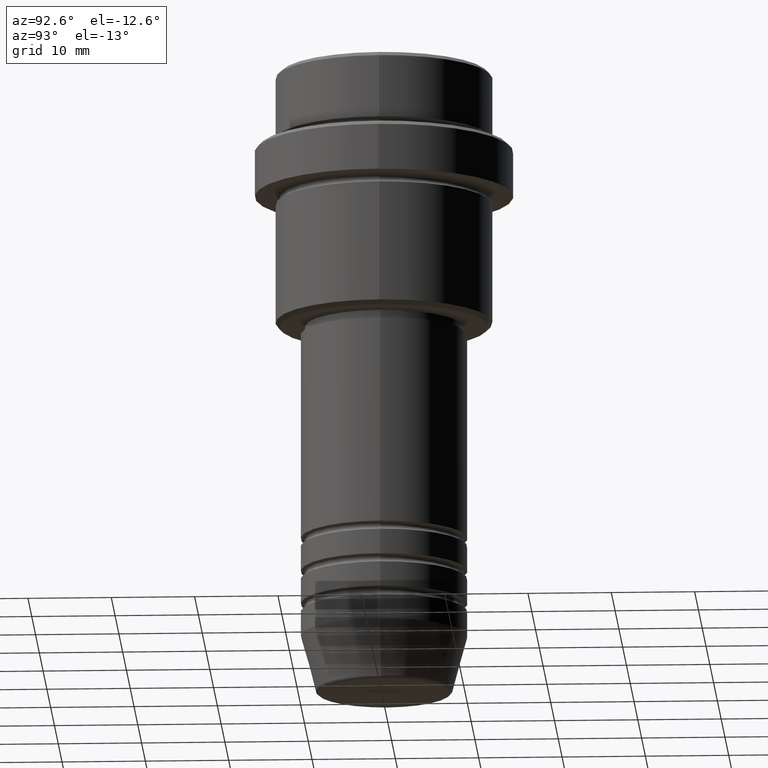
[diagram: clean part render]
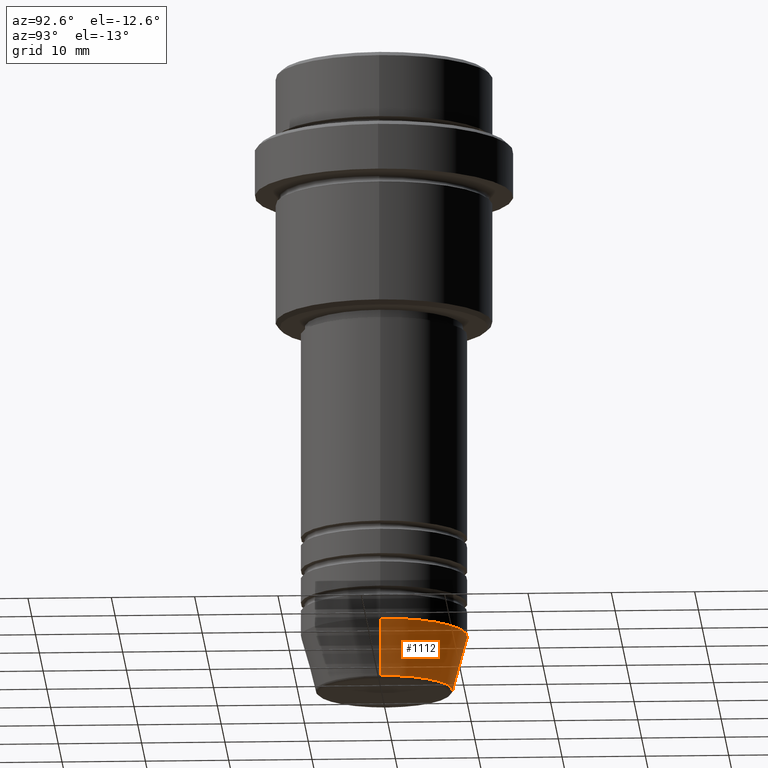
[diagram: same view with one face highlighted and labeled with its STEP entity id]
A machine part, auxiliary view. The second image highlights one B-rep face of the part: STEP entity #1112.
In plain terms, the highlighted conical surface has half-angle 15 deg.
Its self-contained STEP definition (entity closure, byte-faithful):
#33 = CIRCLE ( 'NONE', #187, 8.223655072137189492 ) ;
#50 = DIRECTION ( 'NONE',  ( -0.000000000000000000, -0.000000000000000000, 1.000000000000000000 ) ) ;
#68 = CARTESIAN_POINT ( 'NONE',  ( 0.000000000000000000, 0.000000000000000000, -75.62940952255125637 ) ) ;
#90 = EDGE_CURVE ( 'NONE', #1120, #274, #160, .T. ) ;
#115 = EDGE_CURVE ( 'NONE', #274, #1225, #416, .T. ) ;
#128 = EDGE_CURVE ( 'NONE', #1120, #1163, #33, .T. ) ;
#157 = EDGE_LOOP ( 'NONE', ( #262, #456, #1006, #350 ) ) ;
#160 = LINE ( 'NONE', #815, #1035 ) ;
#187 = AXIS2_PLACEMENT_3D ( 'NONE', #68, #50, #479 ) ;
#227 = CARTESIAN_POINT ( 'NONE',  ( -10.00000000000000000, 1.224646799147353256E-15, -68.99999999999998579 ) ) ;
#230 = DIRECTION ( 'NONE',  ( -0.2588190451025214611, 3.169619151431774186E-17, 0.9659258262890679791 ) ) ;
#262 = ORIENTED_EDGE ( 'NONE', *, *, #128, .T. ) ;
#274 = VERTEX_POINT ( 'NONE', #1059 ) ;
#278 = DIRECTION ( 'NONE',  ( -0.000000000000000000, -0.000000000000000000, 1.000000000000000000 ) ) ;
#332 = CONICAL_SURFACE ( 'NONE', #1177, 10.00000000000000000, 0.2617993877991502405 ) ;
#350 = ORIENTED_EDGE ( 'NONE', *, *, #90, .F. ) ;
#379 = VECTOR ( 'NONE', #230, 1000.000000000000114 ) ;
#397 = CARTESIAN_POINT ( 'NONE',  ( 0.000000000000000000, 0.000000000000000000, -68.99999999999998579 ) ) ;
#416 = CIRCLE ( 'NONE', #1214, 10.00000000000000000 ) ;
#456 = ORIENTED_EDGE ( 'NONE', *, *, #821, .T. ) ;
#479 = DIRECTION ( 'NONE',  ( 1.000000000000000000, 0.000000000000000000, 0.000000000000000000 ) ) ;
#589 = DIRECTION ( 'NONE',  ( 0.2588190451025214611, 0.000000000000000000, 0.9659258262890679791 ) ) ;
#815 = CARTESIAN_POINT ( 'NONE',  ( 10.00000000000000000, 0.000000000000000000, -68.99999999999998579 ) ) ;
#821 = EDGE_CURVE ( 'NONE', #1163, #1225, #1211, .T. ) ;
#837 = CARTESIAN_POINT ( 'NONE',  ( -8.223655072137189492, 1.115877042642912054E-15, -75.62940952255125637 ) ) ;
#848 = CARTESIAN_POINT ( 'NONE',  ( 8.223655072137189492, 0.000000000000000000, -75.62940952255125637 ) ) ;
#861 = FACE_OUTER_BOUND ( 'NONE', #157, .T. ) ;
#896 = CARTESIAN_POINT ( 'NONE',  ( -10.00000000000000000, 1.224646799147353256E-15, -68.99999999999998579 ) ) ;
#937 = DIRECTION ( 'NONE',  ( 1.000000000000000000, 0.000000000000000000, 0.000000000000000000 ) ) ;
#1006 = ORIENTED_EDGE ( 'NONE', *, *, #115, .F. ) ;
#1025 = CARTESIAN_POINT ( 'NONE',  ( 0.000000000000000000, 0.000000000000000000, -68.99999999999998579 ) ) ;
#1035 = VECTOR ( 'NONE', #589, 1000.000000000000114 ) ;
#1059 = CARTESIAN_POINT ( 'NONE',  ( 10.00000000000000000, 0.000000000000000000, -68.99999999999998579 ) ) ;
#1112 = ADVANCED_FACE ( 'NONE', ( #861 ), #332, .T. ) ;
#1120 = VERTEX_POINT ( 'NONE', #848 ) ;
#1163 = VERTEX_POINT ( 'NONE', #837 ) ;
#1177 = AXIS2_PLACEMENT_3D ( 'NONE', #397, #1396, #937 ) ;
#1211 = LINE ( 'NONE', #896, #379 ) ;
#1214 = AXIS2_PLACEMENT_3D ( 'NONE', #1025, #278, #1367 ) ;
#1225 = VERTEX_POINT ( 'NONE', #227 ) ;
#1367 = DIRECTION ( 'NONE',  ( 1.000000000000000000, 0.000000000000000000, 0.000000000000000000 ) ) ;
#1396 = DIRECTION ( 'NONE',  ( -0.000000000000000000, -0.000000000000000000, 1.000000000000000000 ) ) ;